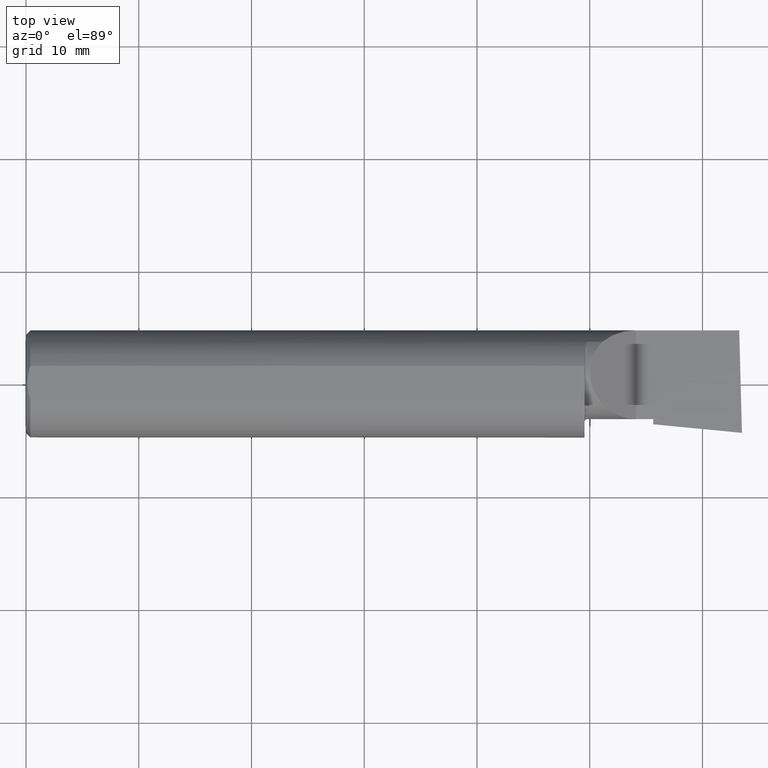
[diagram: clean part render]
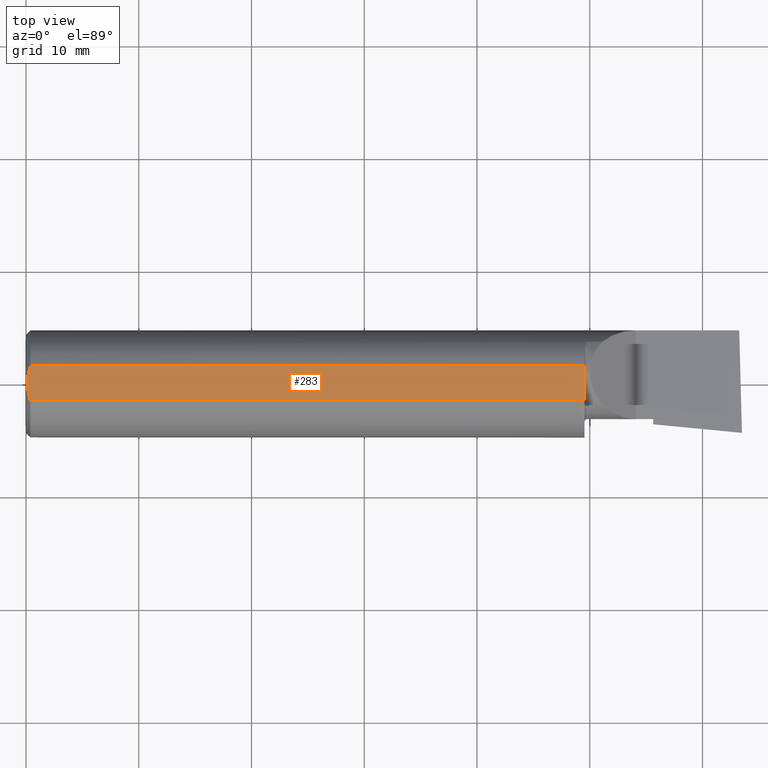
[diagram: same view with one face highlighted and labeled with its STEP entity id]
A machine part, top view. The second image highlights one B-rep face of the part: STEP entity #283.
In plain terms, the highlighted planar face has unit normal (0, -0, -1).
Its self-contained STEP definition (entity closure, byte-faithful):
#6 = CARTESIAN_POINT ( 'NONE',  ( 1.950000000000000178, -0.06039039658753697637, 0.1773499999999999799 ) ) ;
#45 = CARTESIAN_POINT ( 'NONE',  ( 0.005896899252109526549, -0.02043863390046160924, 0.1773500000000000354 ) ) ;
#47 = ORIENTED_EDGE ( 'NONE', *, *, #244, .F. ) ;
#58 = ORIENTED_EDGE ( 'NONE', *, *, #458, .T. ) ;
#67 = CARTESIAN_POINT ( 'NONE',  ( 0.000000000000000000, 0.06039039658753699719, 0.1773499999999999799 ) ) ;
#77 = VERTEX_POINT ( 'NONE', #6 ) ;
#79 = DIRECTION ( 'NONE',  ( 6.829619984160658046E-18, 1.000000000000000000, -1.438723400918613551E-16 ) ) ;
#97 = EDGE_CURVE ( 'NONE', #77, #499, #561, .T. ) ;
#119 = CARTESIAN_POINT ( 'NONE',  ( 1.950000000000000178, 0.2373500000000000332, 0.1773499999999999521 ) ) ;
#128 = ORIENTED_EDGE ( 'NONE', *, *, #528, .F. ) ;
#135 = CARTESIAN_POINT ( 'NONE',  ( 0.005000000000000064289, 2.941982644279459108E-17, 0.1773499999999999799 ) ) ;
#142 = CARTESIAN_POINT ( 'NONE',  ( 0.000000000000000000, -0.06039039658753694861, 0.1773499999999999799 ) ) ;
#150 = CARTESIAN_POINT ( 'NONE',  ( 1.950000000000000178, 0.06039039658753701106, 0.1773499999999999799 ) ) ;
#160 = ORIENTED_EDGE ( 'NONE', *, *, #329, .F. ) ;
#194 = LINE ( 'NONE', #67, #388 ) ;
#208 = CARTESIAN_POINT ( 'NONE',  ( 0.009318557230853338064, -0.04061090184993773611, 0.1773500000000000354 ) ) ;
#210 = EDGE_LOOP ( 'NONE', ( #663, #58, #128, #47, #160 ) ) ;
#244 = EDGE_CURVE ( 'NONE', #635, #307, #438, .T. ) ;
#256 = CARTESIAN_POINT ( 'NONE',  ( 0.005916828623699200637, 0.02060071390057457985, 0.1773500000000000354 ) ) ;
#265 = FACE_OUTER_BOUND ( 'NONE', #210, .T. ) ;
#283 = ADVANCED_FACE ( 'NONE', ( #265 ), #414, .F. ) ;
#300 = CARTESIAN_POINT ( 'NONE',  ( 0.005000000000000064289, 2.941982644279459108E-17, 0.1773499999999999799 ) ) ;
#301 = B_SPLINE_CURVE_WITH_KNOTS ( 'NONE', 3,
 ( #587, #583, #208, #45, #469, #481 ),
 .UNSPECIFIED., .F., .F.,
 ( 4, 2, 4 ),
 ( 0.001920996734031360986, 0.002696206145936997766, 0.003471415557842634329 ),
 .UNSPECIFIED. ) ;
#304 = VECTOR ( 'NONE', #403, 39.37007874015748143 ) ;
#307 = VERTEX_POINT ( 'NONE', #677 ) ;
#311 = VERTEX_POINT ( 'NONE', #150 ) ;
#314 = DIRECTION ( 'NONE',  ( 0.000000000000000000, 1.000000000000000000, -1.438723400918613551E-16 ) ) ;
#329 = EDGE_CURVE ( 'NONE', #499, #635, #301, .T. ) ;
#388 = VECTOR ( 'NONE', #661, 39.37007874015748143 ) ;
#403 = DIRECTION ( 'NONE',  ( -1.000000000000000000, -0.000000000000000000, -0.000000000000000000 ) ) ;
#414 = PLANE ( 'NONE',  #678 ) ;
#424 = DIRECTION ( 'NONE',  ( 0.000000000000000000, -1.438723400918613551E-16, -1.000000000000000000 ) ) ;
#438 = B_SPLINE_CURVE_WITH_KNOTS ( 'NONE', 3,
 ( #135, #462, #256, #475, #680, #579 ),
 .UNSPECIFIED., .F., .F.,
 ( 4, 2, 4 ),
 ( 0.003471415557842634329, 0.004247578446323233697, 0.005023741334803832198 ),
 .UNSPECIFIED. ) ;
#458 = EDGE_CURVE ( 'NONE', #77, #311, #598, .T. ) ;
#462 = CARTESIAN_POINT ( 'NONE',  ( 0.005000000000000065156, 0.01027925662263780987, 0.1773499999999999521 ) ) ;
#469 = CARTESIAN_POINT ( 'NONE',  ( 0.005000000000000066891, -0.01026662907944657019, 0.1773499999999999521 ) ) ;
#475 = CARTESIAN_POINT ( 'NONE',  ( 0.009346310357819969869, 0.04072930668827118295, 0.1773499999999999799 ) ) ;
#481 = CARTESIAN_POINT ( 'NONE',  ( 0.005000000000000064289, 2.941982644279459108E-17, 0.1773499999999999799 ) ) ;
#499 = VERTEX_POINT ( 'NONE', #562 ) ;
#516 = VECTOR ( 'NONE', #79, 39.37007874015748143 ) ;
#528 = EDGE_CURVE ( 'NONE', #307, #311, #194, .T. ) ;
#561 = LINE ( 'NONE', #142, #304 ) ;
#562 = CARTESIAN_POINT ( 'NONE',  ( 0.01499999999999997863, -0.06039039658753695555, 0.1773499999999999799 ) ) ;
#579 = CARTESIAN_POINT ( 'NONE',  ( 0.01499999999999999424, 0.06039039658753699719, 0.1773499999999999799 ) ) ;
#583 = CARTESIAN_POINT ( 'NONE',  ( 0.01186375298701901684, -0.05066077215909264159, 0.1773500000000000354 ) ) ;
#587 = CARTESIAN_POINT ( 'NONE',  ( 0.01499999999999997863, -0.06039039658753695555, 0.1773499999999999799 ) ) ;
#598 = LINE ( 'NONE', #119, #516 ) ;
#630 = CARTESIAN_POINT ( 'NONE',  ( 2.500000000000000000, 0.2373500000000000332, 0.1773499999999999521 ) ) ;
#635 = VERTEX_POINT ( 'NONE', #300 ) ;
#661 = DIRECTION ( 'NONE',  ( 1.000000000000000000, 0.000000000000000000, 0.000000000000000000 ) ) ;
#663 = ORIENTED_EDGE ( 'NONE', *, *, #97, .F. ) ;
#677 = CARTESIAN_POINT ( 'NONE',  ( 0.01499999999999999424, 0.06039039658753699719, 0.1773499999999999799 ) ) ;
#678 = AXIS2_PLACEMENT_3D ( 'NONE', #630, #424, #314 ) ;
#680 = CARTESIAN_POINT ( 'NONE',  ( 0.01185291896084126120, 0.05062716160312127206, 0.1773499999999999799 ) ) ;